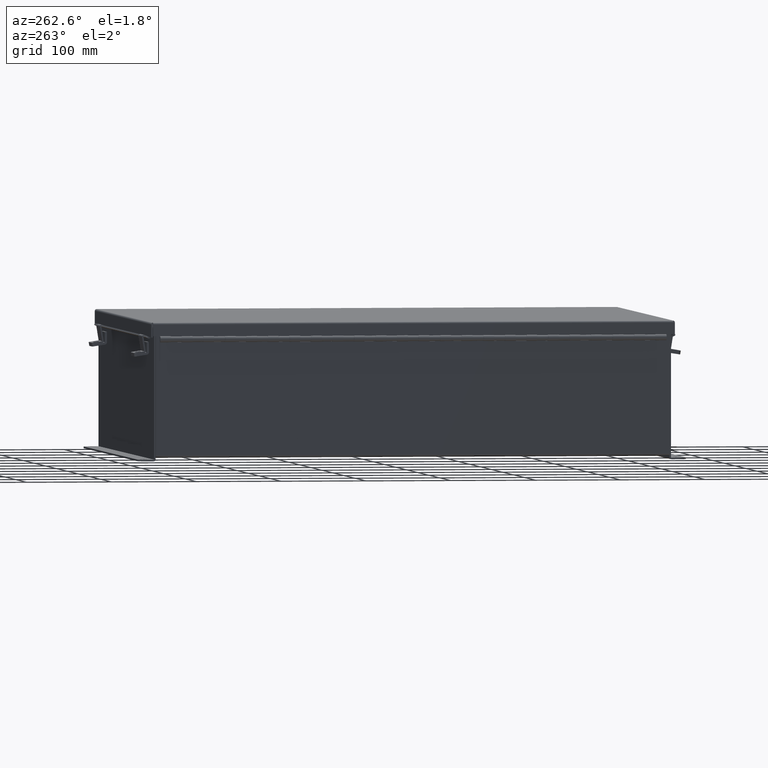
[diagram: clean part render]
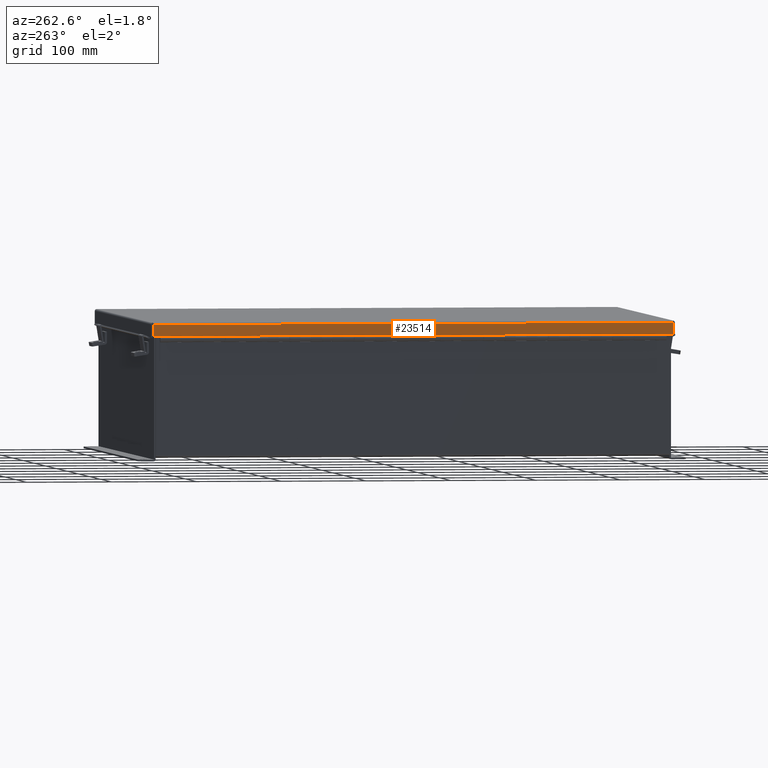
[diagram: same view with one face highlighted and labeled with its STEP entity id]
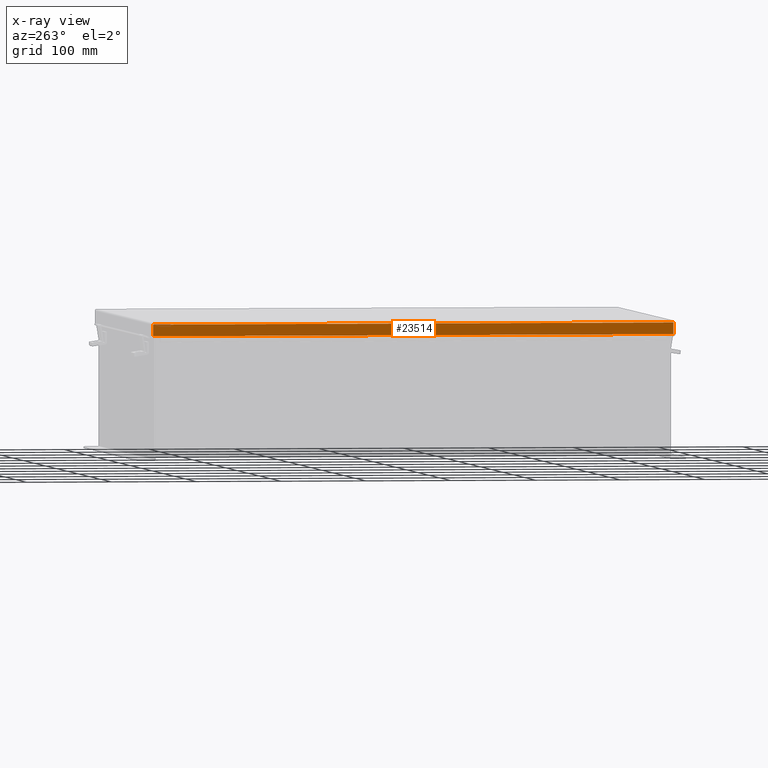
[diagram: x-ray of the same camera — body ghosted, the highlighted face saturated]
A machine part, auxiliary view. The second image highlights one B-rep face of the part: STEP entity #23514.
The next image is the same camera in x-ray: the body ghosted, the highlighted face saturated — about 0% of this face is hidden behind the body in this view.
In plain terms, the highlighted planar face has unit normal (1, -0, 0).
Its self-contained STEP definition (entity closure, byte-faithful):
#140 = LINE ( 'NONE', #17111, #14753 ) ;
#1043 = EDGE_CURVE ( 'NONE', #22599, #19847, #140, .T. ) ;
#1407 = EDGE_CURVE ( 'NONE', #24550, #11926, #22260, .T. ) ;
#1793 = DIRECTION ( 'NONE',  ( 3.971430846686186800E-015, 1.846427556282924300E-029, 1.000000000000000000 ) ) ;
#1903 = VECTOR ( 'NONE', #8537, 39.37007874015748100 ) ;
#2473 = VECTOR ( 'NONE', #20669, 39.37007874015748100 ) ;
#4299 = CARTESIAN_POINT ( 'NONE',  ( 10.15625000000003600, -12.07447893218813400, 0.5503000000000010100 ) ) ;
#5969 = CARTESIAN_POINT ( 'NONE',  ( 10.15625000000003600, 0.0000000000000000000, -4.043135030623109600E-014 ) ) ;
#6261 = DIRECTION ( 'NONE',  ( -3.166671605124525800E-030, -1.000000000000000000, -1.853823127269377700E-029 ) ) ;
#8537 = DIRECTION ( 'NONE',  ( 3.971430846686186800E-015, 1.846427556282924300E-029, 1.000000000000000000 ) ) ;
#8753 = CARTESIAN_POINT ( 'NONE',  ( 10.15625000000003900, 12.07447893218813000, 0.01300000000000010700 ) ) ;
#9137 = CARTESIAN_POINT ( 'NONE',  ( 10.15625000000003900, -12.15625000000000000, 0.01300000000000010700 ) ) ;
#9797 = PLANE ( 'NONE',  #11814 ) ;
#11659 = EDGE_LOOP ( 'NONE', ( #24433, #22564, #14872, #19545 ) ) ;
#11731 = DIRECTION ( 'NONE',  ( 3.971430846686186800E-015, 1.846427556282924000E-029, 1.000000000000000000 ) ) ;
#11814 = AXIS2_PLACEMENT_3D ( 'NONE', #5969, #23259, #11731 ) ;
#11892 = VECTOR ( 'NONE', #6261, 39.37007874015748100 ) ;
#11926 = VERTEX_POINT ( 'NONE', #4299 ) ;
#12562 = CARTESIAN_POINT ( 'NONE',  ( 10.15625000000003900, -12.07447893218813400, 0.01300000000000010700 ) ) ;
#14753 = VECTOR ( 'NONE', #1793, 39.37007874015748100 ) ;
#14872 = ORIENTED_EDGE ( 'NONE', *, *, #24796, .T. ) ;
#16018 = CARTESIAN_POINT ( 'NONE',  ( 10.15625000000003600, 12.07447893218813000, 0.5503000000000085600 ) ) ;
#17111 = CARTESIAN_POINT ( 'NONE',  ( 10.15625000000003900, 12.07447893218813400, -4.043135030623109600E-014 ) ) ;
#17741 = LINE ( 'NONE', #9137, #2473 ) ;
#19444 = EDGE_CURVE ( 'NONE', #22599, #24550, #17741, .T. ) ;
#19545 = ORIENTED_EDGE ( 'NONE', *, *, #1407, .F. ) ;
#19671 = FACE_OUTER_BOUND ( 'NONE', #11659, .T. ) ;
#19847 = VERTEX_POINT ( 'NONE', #16018 ) ;
#20669 = DIRECTION ( 'NONE',  ( -3.166671605124525800E-030, -1.000000000000000000, -1.853823127269377700E-029 ) ) ;
#21974 = CARTESIAN_POINT ( 'NONE',  ( 10.15625000000003900, -12.07447893218813400, 0.0000000000000000000 ) ) ;
#22114 = LINE ( 'NONE', #22907, #11892 ) ;
#22260 = LINE ( 'NONE', #21974, #1903 ) ;
#22564 = ORIENTED_EDGE ( 'NONE', *, *, #1043, .T. ) ;
#22599 = VERTEX_POINT ( 'NONE', #8753 ) ;
#22907 = CARTESIAN_POINT ( 'NONE',  ( 10.15625000000003900, 0.0000000000000000000, 0.5502999999999999000 ) ) ;
#23259 = DIRECTION ( 'NONE',  ( -1.000000000000000000, -3.214874041279299500E-030, 3.971430846686186800E-015 ) ) ;
#23514 = ADVANCED_FACE ( 'NONE', ( #19671 ), #9797, .F. ) ;
#24433 = ORIENTED_EDGE ( 'NONE', *, *, #19444, .F. ) ;
#24550 = VERTEX_POINT ( 'NONE', #12562 ) ;
#24796 = EDGE_CURVE ( 'NONE', #19847, #11926, #22114, .T. ) ;